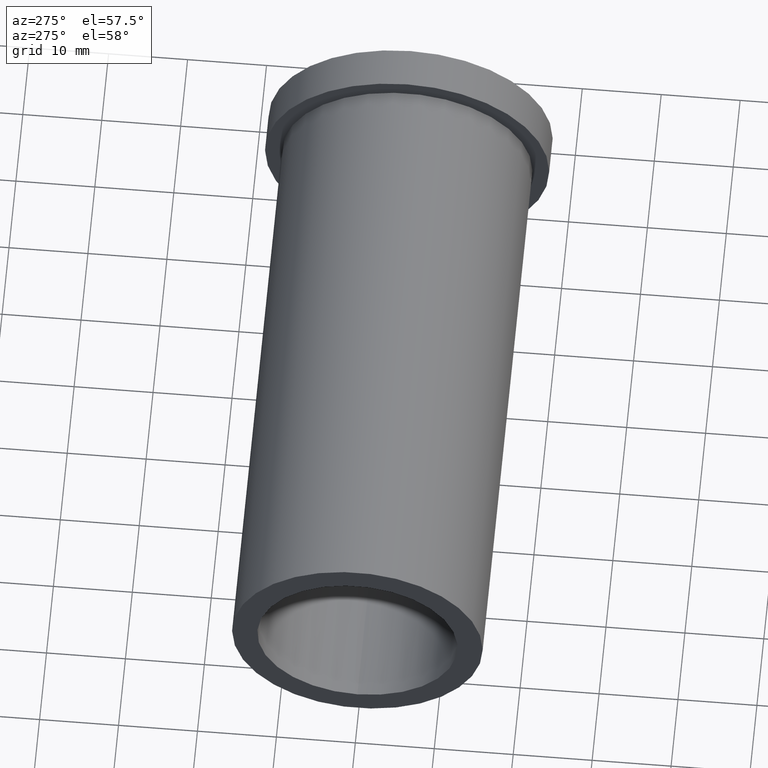
[diagram: clean part render]
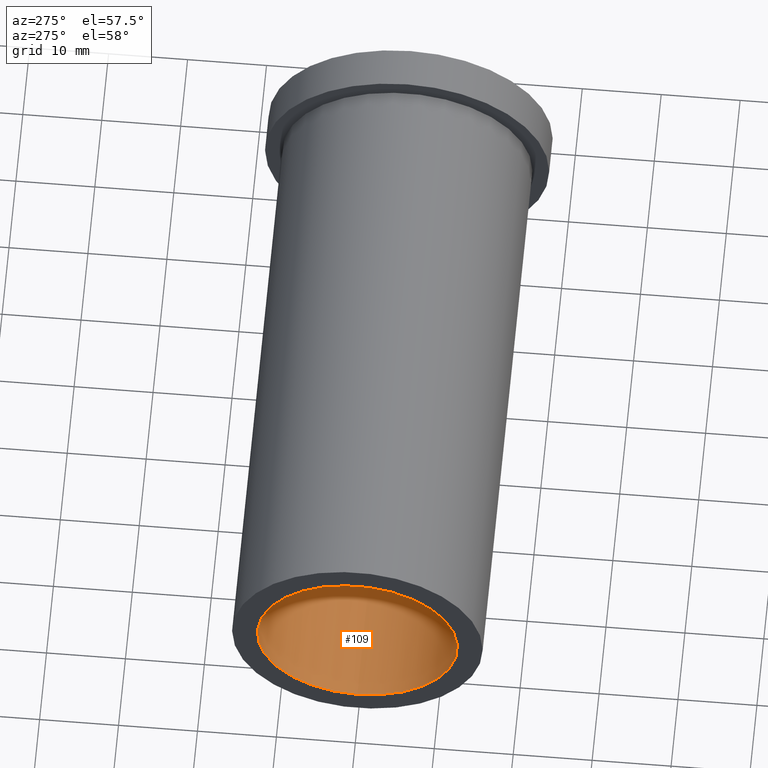
[diagram: same view with one face highlighted and labeled with its STEP entity id]
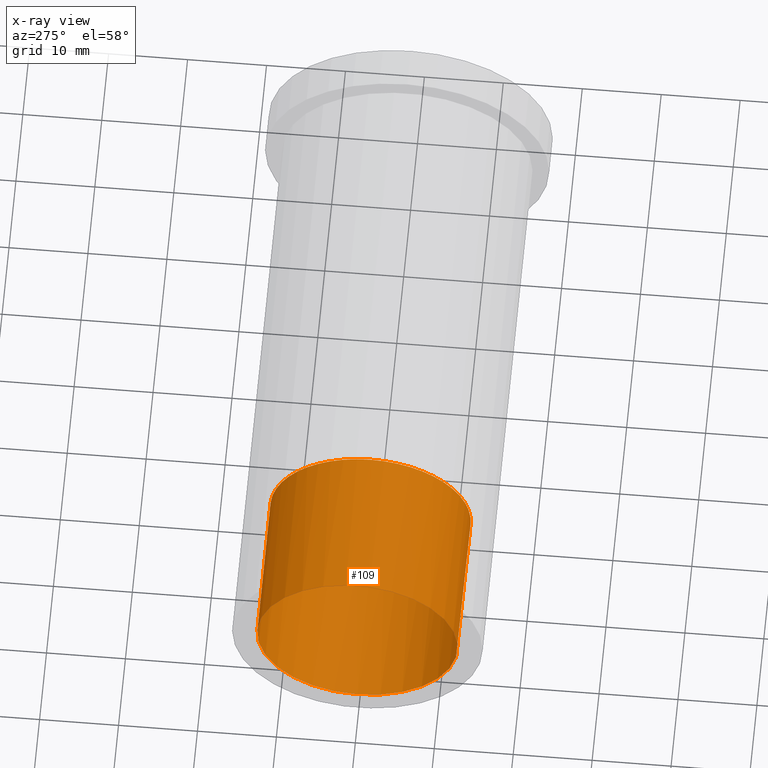
[diagram: x-ray of the same camera — body ghosted, the highlighted face saturated]
A machine part, auxiliary view. The second image highlights one B-rep face of the part: STEP entity #109.
The next image is the same camera in x-ray: the body ghosted, the highlighted face saturated — about 0% of this face is hidden behind the body in this view.
In plain terms, the highlighted cylindrical surface (bore or boss wall) has radius 12.6881 mm, axis along (-1, 0, 0).
Its self-contained STEP definition (entity closure, byte-faithful):
#25=FACE_OUTER_BOUND('',#34,.T.);
#34=EDGE_LOOP('',(#85,#86,#87,#88));
#44=LINE('',#205,#48);
#48=VECTOR('',#171,12.688101);
#53=CIRCLE('',#142,12.688101);
#54=CIRCLE('',#144,12.688101);
#61=VERTEX_POINT('',#200);
#62=VERTEX_POINT('',#203);
#70=EDGE_CURVE('',#61,#61,#53,.T.);
#71=EDGE_CURVE('',#62,#62,#54,.T.);
#72=EDGE_CURVE('',#62,#61,#44,.T.);
#85=ORIENTED_EDGE('',*,*,#71,.F.);
#86=ORIENTED_EDGE('',*,*,#72,.T.);
#87=ORIENTED_EDGE('',*,*,#70,.T.);
#88=ORIENTED_EDGE('',*,*,#72,.F.);
#104=CYLINDRICAL_SURFACE('',#143,12.688101);
#109=ADVANCED_FACE('',(#25),#104,.F.);
#142=AXIS2_PLACEMENT_3D('',#201,#165,#166);
#143=AXIS2_PLACEMENT_3D('',#202,#167,#168);
#144=AXIS2_PLACEMENT_3D('',#204,#169,#170);
#165=DIRECTION('center_axis',(1.,0.,0.));
#166=DIRECTION('ref_axis',(0.,0.,1.));
#167=DIRECTION('center_axis',(-1.,0.,0.));
#168=DIRECTION('ref_axis',(0.,0.,1.));
#169=DIRECTION('center_axis',(1.,0.,0.));
#170=DIRECTION('ref_axis',(0.,0.,1.));
#171=DIRECTION('',(1.,0.,0.));
#200=CARTESIAN_POINT('',(-58.,1.55384422769083E-15,-12.688101));
#201=CARTESIAN_POINT('Origin',(-58.,0.,0.));
#202=CARTESIAN_POINT('Origin',(-67.,0.,0.));
#203=CARTESIAN_POINT('',(-77.,-1.55384422769083E-15,-12.688101));
#204=CARTESIAN_POINT('Origin',(-77.,0.,0.));
#205=CARTESIAN_POINT('',(-67.,-1.55384422769083E-15,-12.688101));